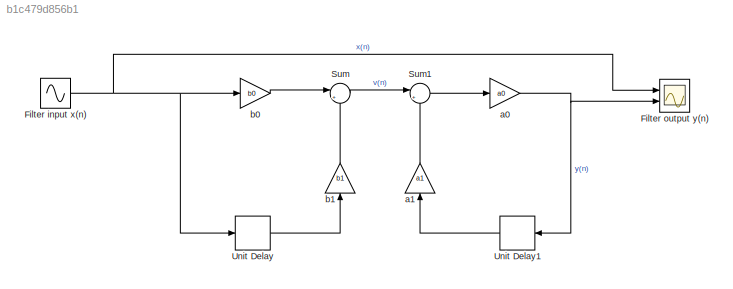
MODEL slx_b1c479d856b1
KIND model
CONFIG AbsTol = auto
CONFIG EnableMultiTasking = off
CONFIG FixedStep = auto
CONFIG MaxStep = 0.00000021008403361344539
CONFIG MinStep = auto
CONFIG RelTol = 1e-3
CONFIG SampleTimeConstraint = Unconstrained
CONFIG SolverName = VariableStepDiscrete
CONFIG StartTime = 0.0
CONFIG StopTime = 0.05
BLOCK [Sin] Filter input x(n)
  Amplitude = 2
  Frequency = rc
  Ports = [0, 1]
  SampleTime = 0
BLOCK [Scope] Filter output y(n)
  Floating = off
  NumInputPorts = 2
  Ports = [2]
  ScopeSpecificationString = Simulink.scopes.TimeScopeBlockCfg('CurrentConfiguration', extmgr.ConfigurationSet(extmgr.Configuration('Core','General UI',true),extmgr.Configuration('Core','Source UI',true),extmgr.Configuration('Sources','WiredSimulink',true),extmgr.Configuration('Visuals','Time Domain',true,'SerializedDisplays',{struct('MinYLimReal','-2.5','MaxYLimReal','2.5','YLabelReal','','MinYLimMag','0.00000','MaxYLimMag',...<+2026ch>
BLOCK [Sum] Sum
  Inputs = |++
  Ports = [2, 1]
BLOCK [Sum] Sum1
  Inputs = |++
  Ports = [2, 1]
BLOCK [Delay] Unit Delay
  DelayLength = 1
  InitialCondition = 0
  InputPortMap = u0
  Ports = [1, 1]
BLOCK [Delay] Unit Delay1
  DelayLength = 1
  InitialCondition = 0
  InputPortMap = u0
  Ports = [1, 1]
BLOCK [Gain] a0
  Gain = a0
BLOCK [Gain] a1
  Gain = a1
  NameLocation = left
BLOCK [Gain] b0
  Gain = b0
BLOCK [Gain] b1
  Gain = b1
  NameLocation = left
NET Filter input x(n):1 -> Filter output y(n):1, Unit Delay:1, b0:1
LINE Sum1:1 -> a0:1
LINE Sum:1 -> Sum1:1
LINE Unit Delay1:1 -> a1:1
LINE Unit Delay:1 -> b1:1
NET a0:1 -> Filter output y(n):2, Unit Delay1:1
LINE a1:1 -> Sum1:2
LINE b0:1 -> Sum:1
LINE b1:1 -> Sum:2
note: NET lines group one-source signal fan-out (src -> all destinations, sorted); 1:1 wires keep LINE
